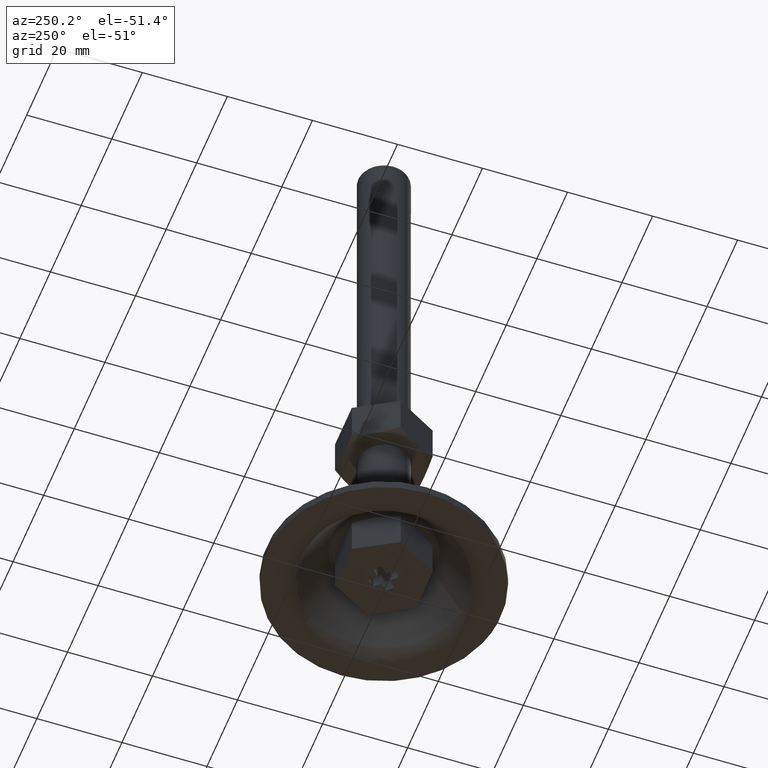
[diagram: clean part render]
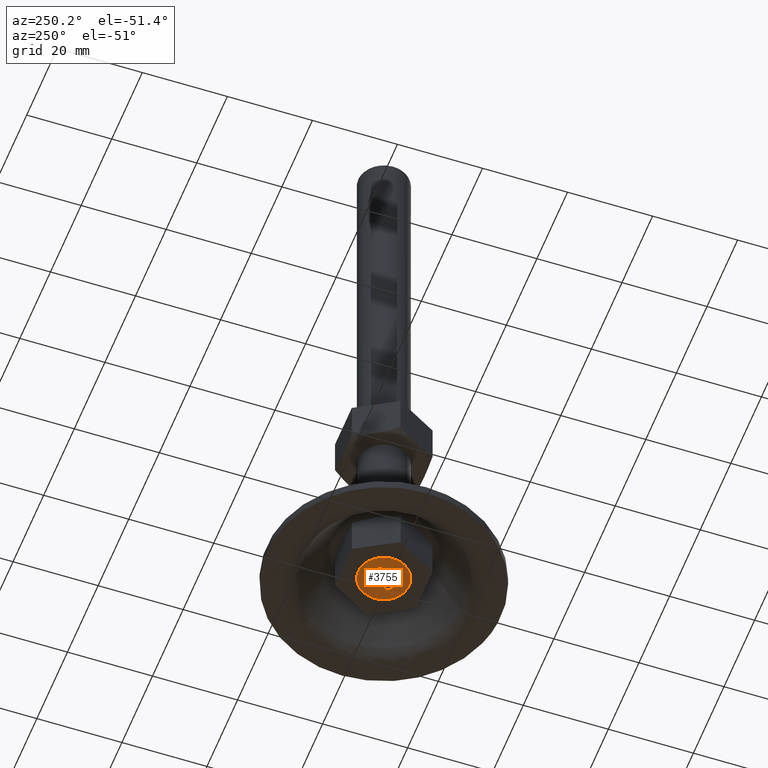
[diagram: same view with one face highlighted and labeled with its STEP entity id]
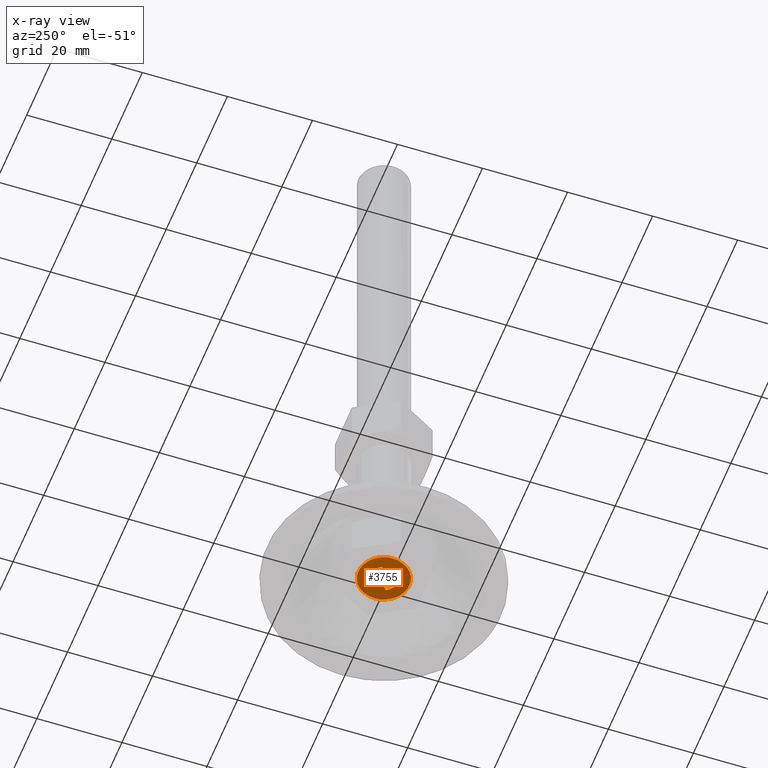
[diagram: x-ray of the same camera — body ghosted, the highlighted face saturated]
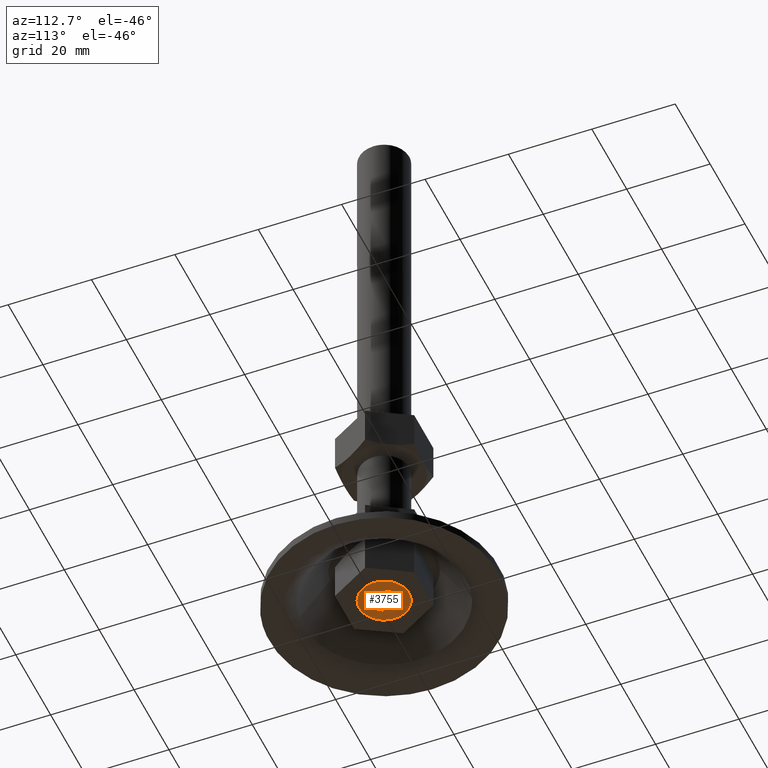
[diagram: same view with one face highlighted and labeled with its STEP entity id]
A machine part, auxiliary view. The second image highlights one B-rep face of the part: STEP entity #3755.
The next image is the same camera in x-ray: the body ghosted, the highlighted face saturated — about 0% of this face is hidden behind the body in this view.
A second angle (auxiliary view) of the same face is appended — the face is thin or edge-on in the first view.
In plain terms, the highlighted face is a freeform B-spline surface patch.
Its self-contained STEP definition (entity closure, byte-faithful):
#2472=CARTESIAN_POINT('',(0.470754574655435,5.981504002376072,2.0));
#2473=VERTEX_POINT('',#2472);
#2479=CARTESIAN_POINT('',(-6.0,0.0,2.0));
#2480=VERTEX_POINT('',#2479);
#2481=CARTESIAN_POINT('',(0.470754574655435,5.981504002376072,2.000000000000000));
#2482=CARTESIAN_POINT('',(0.235740642335720,6.0,2.0));
#2483=CARTESIAN_POINT('',(0.0,6.0,2.0));
#2484=CARTESIAN_POINT('',(-6.0,6.0,2.000000000000000));
#2485=CARTESIAN_POINT('',(-6.0,0.0,2.0));
#2493=(BOUNDED_CURVE()B_SPLINE_CURVE(2,(#2481,#2482,#2483,#2484,#2485),.UNSPECIFIED.,.F.,.U.)B_SPLINE_CURVE_WITH_KNOTS((3,2,3),(0.736331300616238,0.750000000000000,1.0),.UNSPECIFIED.)CURVE()GEOMETRIC_REPRESENTATION_ITEM()RATIONAL_B_SPLINE_CURVE((0.969723356137322,0.983986122561986,1.0,0.707106781186548,1.0))REPRESENTATION_ITEM(''));
#2494=EDGE_CURVE('',#2473,#2480,#2493,.T.);
#2496=CARTESIAN_POINT('',(-0.470754574655436,-5.981504002376072,2.0));
#2497=VERTEX_POINT('',#2496);
#2498=CARTESIAN_POINT('',(-6.0,0.0,2.0));
#2499=CARTESIAN_POINT('',(-6.000000000000001,-5.546342949412817,1.999999999999999));
#2500=CARTESIAN_POINT('',(-0.470754574655436,-5.981504002376072,2.0));
#2508=(BOUNDED_CURVE()B_SPLINE_CURVE(2,(#2498,#2499,#2500),.UNSPECIFIED.,.F.,.U.)B_SPLINE_CURVE_WITH_KNOTS((3,3),(0.0,0.236331300616238),.UNSPECIFIED.)CURVE()GEOMETRIC_REPRESENTATION_ITEM()RATIONAL_B_SPLINE_CURVE((1.0,0.723120658624561,0.969723356137322))REPRESENTATION_ITEM(''));
#2509=EDGE_CURVE('',#2480,#2497,#2508,.T.);
#2555=CARTESIAN_POINT('',(6.0,0.0,2.0));
#2556=VERTEX_POINT('',#2555);
#2557=CARTESIAN_POINT('',(-0.470754574655436,-5.981504002376072,2.000000000000000));
#2558=CARTESIAN_POINT('',(-0.235740642335721,-5.999999999999999,2.000000000000000));
#2559=CARTESIAN_POINT('',(0.0,-6.0,2.0));
#2560=CARTESIAN_POINT('',(6.0,-6.0,2.000000000000000));
#2561=CARTESIAN_POINT('',(6.0,0.0,2.0));
#2569=(BOUNDED_CURVE()B_SPLINE_CURVE(2,(#2557,#2558,#2559,#2560,#2561),.UNSPECIFIED.,.F.,.U.)B_SPLINE_CURVE_WITH_KNOTS((3,2,3),(0.236331300616238,0.250000000000000,0.500000000000000),.UNSPECIFIED.)CURVE()GEOMETRIC_REPRESENTATION_ITEM()RATIONAL_B_SPLINE_CURVE((0.969723356137322,0.983986122561986,1.0,0.707106781186548,1.0))REPRESENTATION_ITEM(''));
#2570=EDGE_CURVE('',#2497,#2556,#2569,.T.);
#2572=CARTESIAN_POINT('',(6.0,0.0,2.0));
#2573=CARTESIAN_POINT('',(6.0,5.546342949412848,2.000000000000000));
#2574=CARTESIAN_POINT('',(0.470754574655435,5.981504002376072,2.000000000000000));
#2582=(BOUNDED_CURVE()B_SPLINE_CURVE(2,(#2572,#2573,#2574),.UNSPECIFIED.,.F.,.U.)B_SPLINE_CURVE_WITH_KNOTS((3,3),(0.500000000000000,0.736331300616239),.UNSPECIFIED.)CURVE()GEOMETRIC_REPRESENTATION_ITEM()RATIONAL_B_SPLINE_CURVE((1.0,0.723120658624560,0.969723356137324))REPRESENTATION_ITEM(''));
#2583=EDGE_CURVE('',#2556,#2473,#2582,.T.);
#3115=CARTESIAN_POINT('',(-1.516942000000000,-0.031022999999990,1.999999999999915));
#3116=VERTEX_POINT('',#3115);
#3117=CARTESIAN_POINT('',(-1.507457000000000,0.0,2.0));
#3118=VERTEX_POINT('',#3117);
#3119=CARTESIAN_POINT('',(-1.516942000000000,-0.031022999999990,1.999999999999915));
#3120=CARTESIAN_POINT('',(-1.507457000000000,0.0,2.0));
#3121=QUASI_UNIFORM_CURVE('',1,(#3119,#3120),.UNSPECIFIED.,.F.,.U.);
#3122=EDGE_CURVE('',#3116,#3118,#3121,.T.);
#3143=CARTESIAN_POINT('',(-2.938048381164870,-1.502621612361035,2.0));
#3144=VERTEX_POINT('',#3143);
#3145=CARTESIAN_POINT('',(-2.938048381164870,-1.502621612361035,2.0));
#3146=CARTESIAN_POINT('',(-1.516942000000000,-0.031022999999990,1.999999999999915));
#3147=QUASI_UNIFORM_CURVE('',1,(#3145,#3146),.UNSPECIFIED.,.F.,.U.);
#3148=EDGE_CURVE('',#3144,#3116,#3147,.T.);
#3174=CARTESIAN_POINT('',(-1.502621000000000,-2.938049000000000,2.0));
#3175=VERTEX_POINT('',#3174);
#3176=CARTESIAN_POINT('',(-1.502621000000000,-2.938049000000000,2.0));
#3177=CARTESIAN_POINT('',(-2.452332439122467,-2.452333053674164,2.0));
#3178=CARTESIAN_POINT('',(-2.938048381164871,-1.502621612361036,2.0));
#3186=(BOUNDED_CURVE()B_SPLINE_CURVE(2,(#3176,#3177,#3178),.UNSPECIFIED.,.F.,.U.)CURVE()GEOMETRIC_REPRESENTATION_ITEM()QUASI_UNIFORM_CURVE()RATIONAL_B_SPLINE_CURVE((1.0,0.951523557046928,1.0))REPRESENTATION_ITEM(''));
#3187=EDGE_CURVE('',#3175,#3144,#3186,.T.);
#3204=CARTESIAN_POINT('',(-0.031022000000029,-1.516942000000000,2.0));
#3205=VERTEX_POINT('',#3204);
#3206=CARTESIAN_POINT('',(-0.031022000000029,-1.516942000000000,2.0));
#3207=CARTESIAN_POINT('',(-1.502621000000000,-2.938049000000000,2.0));
#3208=QUASI_UNIFORM_CURVE('',1,(#3206,#3207),.UNSPECIFIED.,.F.,.U.);
#3209=EDGE_CURVE('',#3205,#3175,#3208,.T.);
#3226=CARTESIAN_POINT('',(0.0,-1.507458000000000,2.0));
#3227=VERTEX_POINT('',#3226);
#3228=CARTESIAN_POINT('',(0.0,-1.507458000000000,2.0));
#3229=CARTESIAN_POINT('',(-0.031022000000029,-1.516942000000000,2.0));
#3230=QUASI_UNIFORM_CURVE('',1,(#3228,#3229),.UNSPECIFIED.,.F.,.U.);
#3231=EDGE_CURVE('',#3227,#3205,#3230,.T.);
#3248=CARTESIAN_POINT('',(0.031022999999990,-1.516942000000000,2.0));
#3249=VERTEX_POINT('',#3248);
#3250=CARTESIAN_POINT('',(0.031022999999990,-1.516942000000000,2.0));
#3251=CARTESIAN_POINT('',(0.0,-1.507458000000000,2.0));
#3252=QUASI_UNIFORM_CURVE('',1,(#3250,#3251),.UNSPECIFIED.,.F.,.U.);
#3253=EDGE_CURVE('',#3249,#3227,#3252,.T.);
#3270=CARTESIAN_POINT('',(1.502621612361030,-2.938048381164870,2.0));
#3271=VERTEX_POINT('',#3270);
#3272=CARTESIAN_POINT('',(1.502621612361030,-2.938048381164870,2.0));
#3273=CARTESIAN_POINT('',(0.031022999999990,-1.516942000000000,2.0));
#3274=QUASI_UNIFORM_CURVE('',1,(#3272,#3273),.UNSPECIFIED.,.F.,.U.);
#3275=EDGE_CURVE('',#3271,#3249,#3274,.T.);
#3301=CARTESIAN_POINT('',(2.938049000000000,-1.502622000000000,2.0));
#3302=VERTEX_POINT('',#3301);
#3303=CARTESIAN_POINT('',(2.938049000000000,-1.502622000000000,2.0));
#3304=CARTESIAN_POINT('',(2.452332615929496,-2.452332663000540,2.000000000000000));
#3305=CARTESIAN_POINT('',(1.502621612361031,-2.938048381164874,2.0));
#3313=(BOUNDED_CURVE()B_SPLINE_CURVE(2,(#3303,#3304,#3305),.UNSPECIFIED.,.F.,.U.)CURVE()GEOMETRIC_REPRESENTATION_ITEM()QUASI_UNIFORM_CURVE()RATIONAL_B_SPLINE_CURVE((1.0,0.951523598537862,1.0))REPRESENTATION_ITEM(''));
#3314=EDGE_CURVE('',#3302,#3271,#3313,.T.);
#3331=CARTESIAN_POINT('',(1.516942000000000,-0.031022999999990,2.0));
#3332=VERTEX_POINT('',#3331);
#3333=CARTESIAN_POINT('',(1.516942000000000,-0.031022999999990,2.0));
#3334=CARTESIAN_POINT('',(2.938049000000000,-1.502622000000000,2.0));
#3335=QUASI_UNIFORM_CURVE('',1,(#3333,#3334),.UNSPECIFIED.,.F.,.U.);
#3336=EDGE_CURVE('',#3332,#3302,#3335,.T.);
#3353=CARTESIAN_POINT('',(1.507458000000000,0.0,2.0));
#3354=VERTEX_POINT('',#3353);
#3355=CARTESIAN_POINT('',(1.507458000000000,0.0,2.0));
#3356=CARTESIAN_POINT('',(1.516942000000000,-0.031022999999990,2.0));
#3357=QUASI_UNIFORM_CURVE('',1,(#3355,#3356),.UNSPECIFIED.,.F.,.U.);
#3358=EDGE_CURVE('',#3354,#3332,#3357,.T.);
#3375=CARTESIAN_POINT('',(1.516942000000000,0.031022000000021,2.0));
#3376=VERTEX_POINT('',#3375);
#3377=CARTESIAN_POINT('',(1.516942000000000,0.031022000000021,2.0));
#3378=CARTESIAN_POINT('',(1.507458000000000,0.0,2.0));
#3379=QUASI_UNIFORM_CURVE('',1,(#3377,#3378),.UNSPECIFIED.,.F.,.U.);
#3380=EDGE_CURVE('',#3376,#3354,#3379,.T.);
#3397=CARTESIAN_POINT('',(2.938048381164870,1.502621612361035,2.0));
#3398=VERTEX_POINT('',#3397);
#3399=CARTESIAN_POINT('',(2.938048381164870,1.502621612361035,2.0));
#3400=CARTESIAN_POINT('',(1.516942000000000,0.031022000000021,2.0));
#3401=QUASI_UNIFORM_CURVE('',1,(#3399,#3400),.UNSPECIFIED.,.F.,.U.);
#3402=EDGE_CURVE('',#3398,#3376,#3401,.T.);
#3428=CARTESIAN_POINT('',(1.502622000000000,2.938048000000000,2.0));
#3429=VERTEX_POINT('',#3428);
#3430=CARTESIAN_POINT('',(1.502622000000000,2.938048000000000,2.0));
#3431=CARTESIAN_POINT('',(2.452332777499692,2.452332392051405,2.0));
#3432=CARTESIAN_POINT('',(2.938048381164871,1.502621612361037,2.0));
#3440=(BOUNDED_CURVE()B_SPLINE_CURVE(2,(#3430,#3431,#3432),.UNSPECIFIED.,.F.,.U.)CURVE()GEOMETRIC_REPRESENTATION_ITEM()QUASI_UNIFORM_CURVE()RATIONAL_B_SPLINE_CURVE((1.0,0.951523619757787,1.0))REPRESENTATION_ITEM(''));
#3441=EDGE_CURVE('',#3429,#3398,#3440,.T.);
#3458=CARTESIAN_POINT('',(0.031022999999990,1.516941000000000,2.0));
#3459=VERTEX_POINT('',#3458);
#3460=CARTESIAN_POINT('',(0.031022999999990,1.516941000000000,2.0));
#3461=CARTESIAN_POINT('',(1.502622000000000,2.938048000000000,2.0));
#3462=QUASI_UNIFORM_CURVE('',1,(#3460,#3461),.UNSPECIFIED.,.F.,.U.);
#3463=EDGE_CURVE('',#3459,#3429,#3462,.T.);
#3480=CARTESIAN_POINT('',(0.0,1.507457000000000,2.0));
#3481=VERTEX_POINT('',#3480);
#3482=CARTESIAN_POINT('',(0.0,1.507457000000000,2.0));
#3483=CARTESIAN_POINT('',(0.031022999999990,1.516941000000000,2.0));
#3484=QUASI_UNIFORM_CURVE('',1,(#3482,#3483),.UNSPECIFIED.,.F.,.U.);
#3485=EDGE_CURVE('',#3481,#3459,#3484,.T.);
#3502=CARTESIAN_POINT('',(-0.031022000000029,1.516941000000000,2.0));
#3503=VERTEX_POINT('',#3502);
#3504=CARTESIAN_POINT('',(-0.031022000000029,1.516941000000000,2.0));
#3505=CARTESIAN_POINT('',(0.0,1.507457000000000,2.0));
#3506=QUASI_UNIFORM_CURVE('',1,(#3504,#3505),.UNSPECIFIED.,.F.,.U.);
#3507=EDGE_CURVE('',#3503,#3481,#3506,.T.);
#3524=CARTESIAN_POINT('',(-1.502621612361035,2.938048381164870,2.0));
#3525=VERTEX_POINT('',#3524);
#3526=CARTESIAN_POINT('',(-1.502621612361035,2.938048381164870,2.0));
#3527=CARTESIAN_POINT('',(-0.031022000000029,1.516941000000000,2.0));
#3528=QUASI_UNIFORM_CURVE('',1,(#3526,#3527),.UNSPECIFIED.,.F.,.U.);
#3529=EDGE_CURVE('',#3525,#3503,#3528,.T.);
#3555=CARTESIAN_POINT('',(-2.938048000000000,1.502621000000000,2.0));
#3556=VERTEX_POINT('',#3555);
#3557=CARTESIAN_POINT('',(-2.938048000000000,1.502621000000000,2.0));
#3558=CARTESIAN_POINT('',(-2.452332829796139,2.452332553621589,2.000000000000000));
#3559=CARTESIAN_POINT('',(-1.502621612361037,2.938048381164871,2.0));
#3567=(BOUNDED_CURVE()B_SPLINE_CURVE(2,(#3557,#3558,#3559),.UNSPECIFIED.,.F.,.U.)CURVE()GEOMETRIC_REPRESENTATION_ITEM()QUASI_UNIFORM_CURVE()RATIONAL_B_SPLINE_CURVE((1.0,0.951523578266854,1.0))REPRESENTATION_ITEM(''));
#3568=EDGE_CURVE('',#3556,#3525,#3567,.T.);
#3585=CARTESIAN_POINT('',(-1.516942000000000,0.031022000000021,2.0));
#3586=VERTEX_POINT('',#3585);
#3587=CARTESIAN_POINT('',(-1.516942000000000,0.031022000000021,2.0));
#3588=CARTESIAN_POINT('',(-2.938048000000000,1.502621000000000,2.0));
#3589=QUASI_UNIFORM_CURVE('',1,(#3587,#3588),.UNSPECIFIED.,.F.,.U.);
#3590=EDGE_CURVE('',#3586,#3556,#3589,.T.);
#3607=CARTESIAN_POINT('',(-1.507457000000000,0.0,2.0));
#3608=CARTESIAN_POINT('',(-1.516942000000000,0.031022000000021,2.0));
#3609=QUASI_UNIFORM_CURVE('',1,(#3607,#3608),.UNSPECIFIED.,.F.,.U.);
#3610=EDGE_CURVE('',#3118,#3586,#3609,.T.);
#3722=CARTESIAN_POINT('',(-6.599399976741671,6.597568516360872,1.999999999999915));
#3723=CARTESIAN_POINT('',(6.599400298606753,6.597568516360872,1.999999999999915));
#3724=CARTESIAN_POINT('',(-6.599399976741671,-6.597568838225955,1.999999999999915));
#3725=CARTESIAN_POINT('',(6.599400298606753,-6.597568838225955,1.999999999999915));
#3726=B_SPLINE_SURFACE_WITH_KNOTS('',1,1,((#3722,#3724),(#3723,#3725)),.UNSPECIFIED.,.F.,.F.,.U.,(2,2),(2,2),(0.0,13.198800275348420),(0.0,13.195137354586830),.UNSPECIFIED.);
#3727=ORIENTED_EDGE('',*,*,#2494,.F.);
#3728=ORIENTED_EDGE('',*,*,#2583,.F.);
#3729=ORIENTED_EDGE('',*,*,#2570,.F.);
#3730=ORIENTED_EDGE('',*,*,#2509,.F.);
#3731=EDGE_LOOP('',(#3727,#3728,#3729,#3730));
#3732=FACE_OUTER_BOUND('',#3731,.T.);
#3733=ORIENTED_EDGE('',*,*,#3590,.F.);
#3734=ORIENTED_EDGE('',*,*,#3610,.F.);
#3735=ORIENTED_EDGE('',*,*,#3122,.F.);
#3736=ORIENTED_EDGE('',*,*,#3148,.F.);
#3737=ORIENTED_EDGE('',*,*,#3187,.F.);
#3738=ORIENTED_EDGE('',*,*,#3209,.F.);
#3739=ORIENTED_EDGE('',*,*,#3231,.F.);
#3740=ORIENTED_EDGE('',*,*,#3253,.F.);
#3741=ORIENTED_EDGE('',*,*,#3275,.F.);
#3742=ORIENTED_EDGE('',*,*,#3314,.F.);
#3743=ORIENTED_EDGE('',*,*,#3336,.F.);
#3744=ORIENTED_EDGE('',*,*,#3358,.F.);
#3745=ORIENTED_EDGE('',*,*,#3380,.F.);
#3746=ORIENTED_EDGE('',*,*,#3402,.F.);
#3747=ORIENTED_EDGE('',*,*,#3441,.F.);
#3748=ORIENTED_EDGE('',*,*,#3463,.F.);
#3749=ORIENTED_EDGE('',*,*,#3485,.F.);
#3750=ORIENTED_EDGE('',*,*,#3507,.F.);
#3751=ORIENTED_EDGE('',*,*,#3529,.F.);
#3752=ORIENTED_EDGE('',*,*,#3568,.F.);
#3753=EDGE_LOOP('',(#3733,#3734,#3735,#3736,#3737,#3738,#3739,#3740,#3741,#3742,#3743,#3744,#3745,#3746,#3747,#3748,#3749,#3750,#3751,#3752));
#3754=FACE_BOUND('',#3753,.T.);
#3755=ADVANCED_FACE('',(#3732,#3754),#3726,.T.);